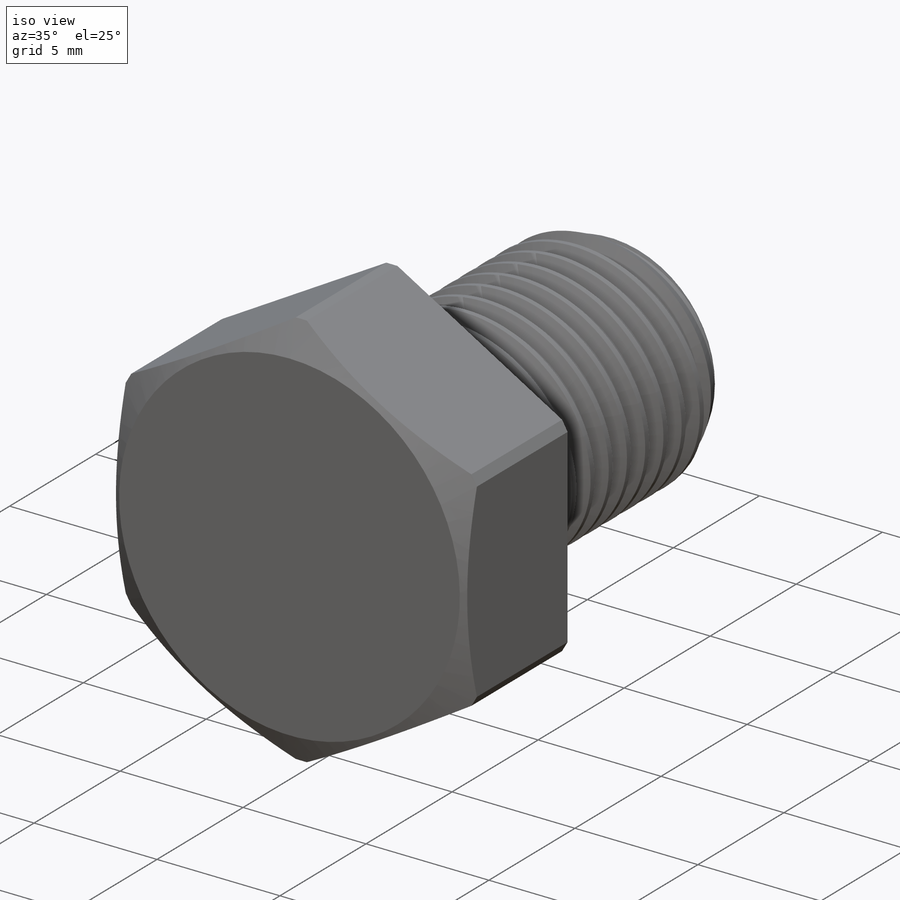
[diagram: iso view]
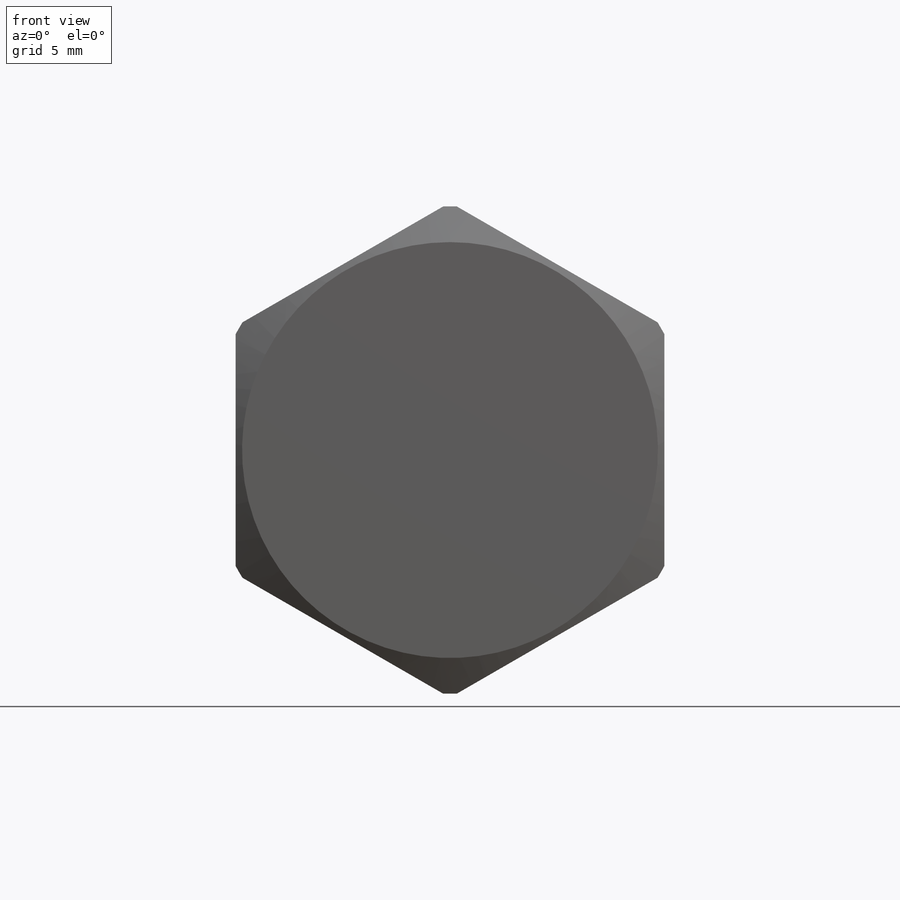
[diagram: front view]
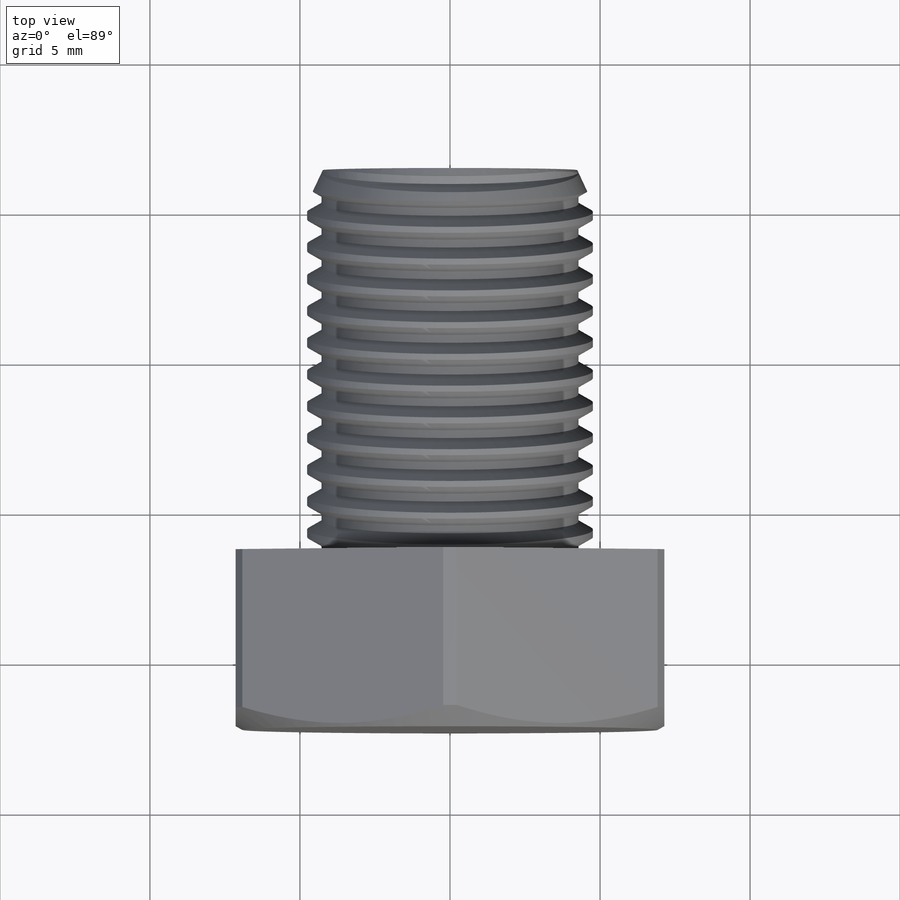
[diagram: top view]
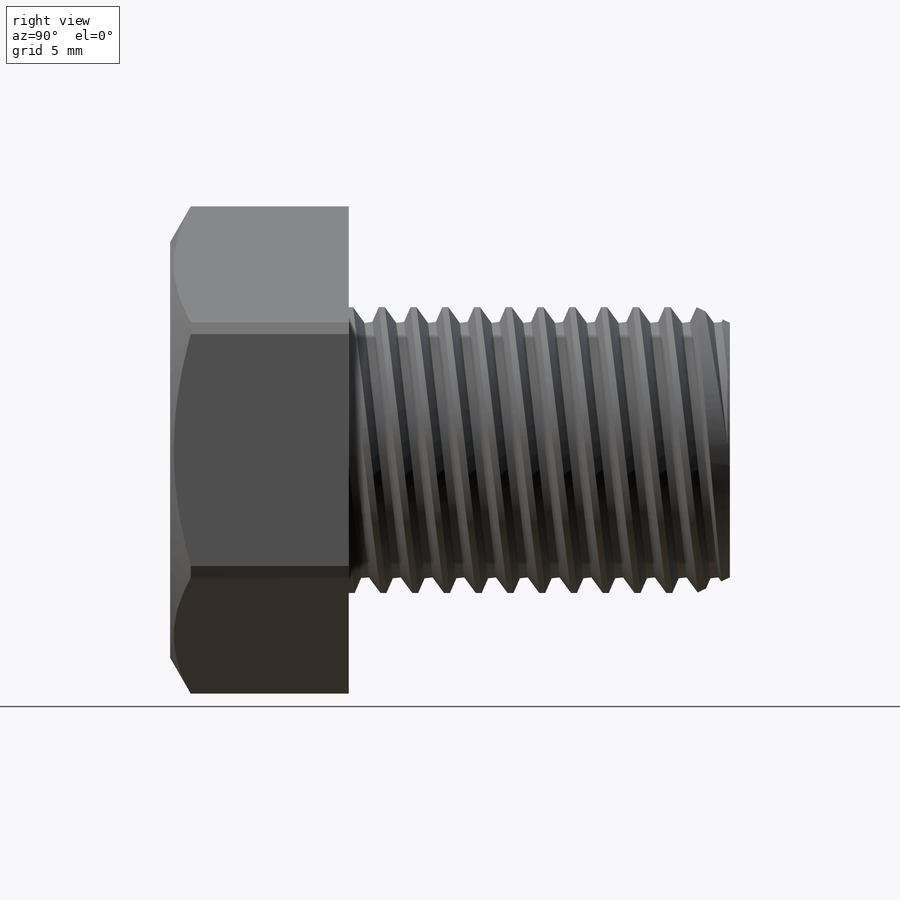
[diagram: right view]
SOLIDWORKS PART (.sldprt)
format: sldprt  version: not decoded by parser v0  size: 1,176,576 bytes
history: native  units: mm
features: sketch x5, cut_revolve x3, material x1, revolve x1, pattern_linear x1, extrude x1 (+14 scaffold rows collapsed)
feature tree (26):
  scaffold x14  (default folders/planes/origin — collapsed)
  material  "Material <not specified>"
  sketch  "Sketch1"  dims[Screw Dia=9.525mm Min Thread Length=44.45mm Screw Length=12.7mm Head Height=~5.953125mm Head Width=14.2875mm Max Thread Length=50.8mm]
  revolve  "Revolve1"  Angle=360deg
  sketch  "Sketch2"  dims[c1.Thread Pitch=5.08mm c1.D1=~1.058333mm c1.D2=~3.620395mm c2.D2=~36.638946deg c2.Thread Pitch=~1.058333mm c2.D3=~0.264583mm c2.D4=~0.132292mm c2.D5=~4.26459mm c3.D5=60.0deg]
  cut_revolve  "Cut-Revolve1"  Angle=360deg
  sketch  "Sketch3"  dims[c1.D1=~8.347053mm c2.D1=25.0deg c2.D2=9.525mm]
  cut_revolve  "Cut-Revolve2"  Angle=360deg
  pattern_linear  "LPattern1"  Count1=2 Count2=12 Spacing1=1.058333mm Spacing2=1.058333mm
  sketch  "Sketch5"  dims[D1=14.2875mm]
  extrude  "Extrude1"  [1 undecoded]
  sketch  "Sketch6"  dims[c1.Hole Dia=~3.96875mm c1.D1=~7.71858mm c2.D1=30.0deg c2.D2=0.127mm c2.D3=0.508mm c2.D4=~13.858875mm c2.D5=~5.953125mm c2.D6=12.7mm]
  cut_revolve  "Cut-Revolve3"  Angle=360deg hex flats=14.2748mm hex flats/2=7.366mm
decode coverage: 10 of 11 modeling features carry decoded parameters
note: ~ marks probable driven/reference dimensions
note: 1 parameter value undecoded
note: suppression state not decoded; provenance and decode notes live in map.json
